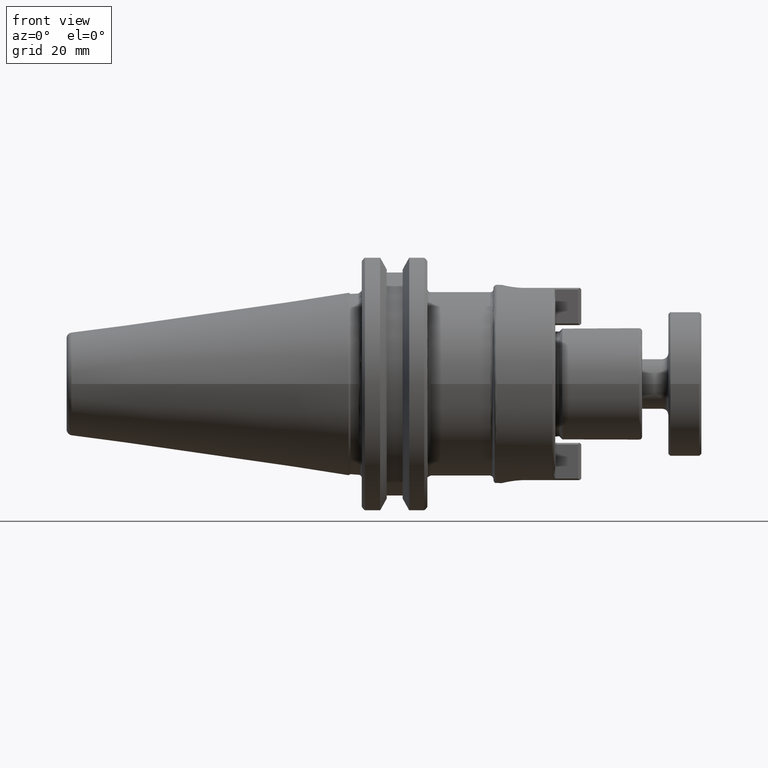
[diagram: clean part render]
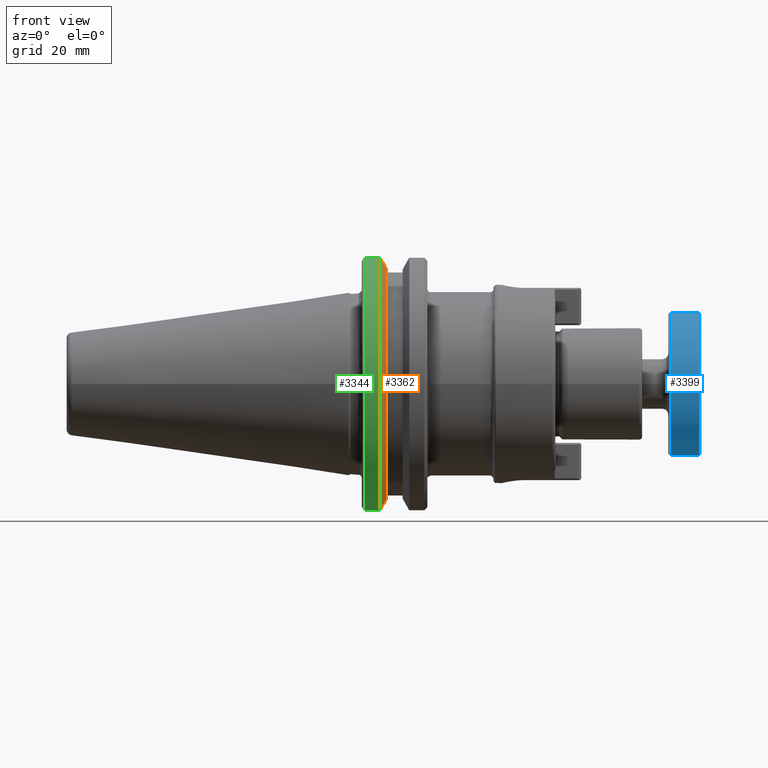
[diagram: same view with three faces highlighted in distinct colors, each labeled with its STEP entity id]
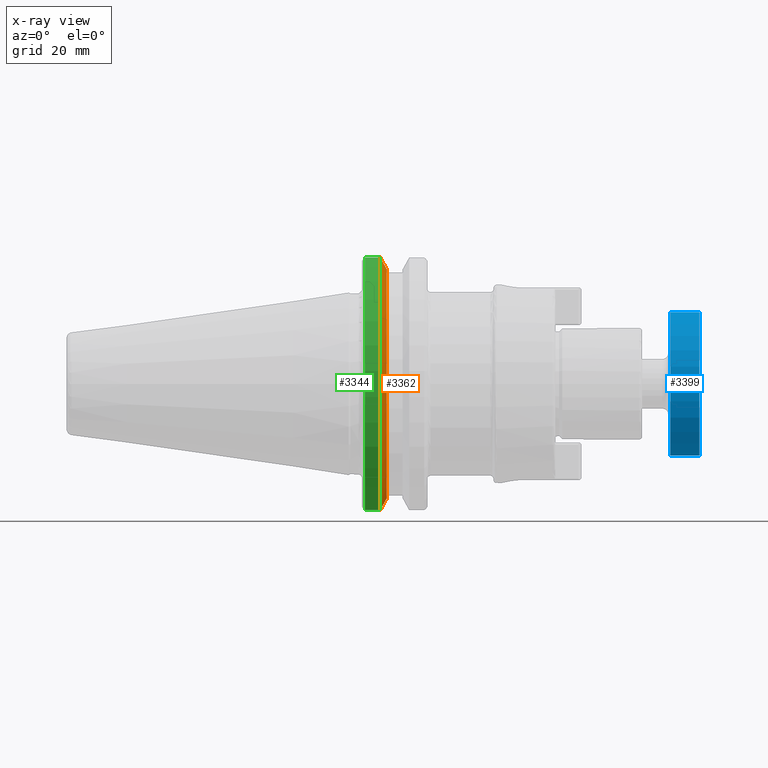
[diagram: x-ray of the same camera — body ghosted, the three highlighted faces saturated]
A machine part, front view with three faces highlighted in distinct colors.
The next image is the same camera in x-ray (body ghosted, the three faces saturated) — at least one of them is partly hidden behind the body in this view.
Their STEP definitions:

[orange] entity #3362 — the highlighted conical surface has half-angle 60 deg.
#90=(
BOUNDED_CURVE()
B_SPLINE_CURVE(2,(#6250,#6251,#6252),.UNSPECIFIED.,.F.,.F.)
B_SPLINE_CURVE_WITH_KNOTS((3,3),(0.,0.0246703220906679),.UNSPECIFIED.)
CURVE()
GEOMETRIC_REPRESENTATION_ITEM()
RATIONAL_B_SPLINE_CURVE((1.,1.00009739248585,1.00018150703369))
REPRESENTATION_ITEM('')
);
#106=(
BOUNDED_CURVE()
B_SPLINE_CURVE(2,(#6776,#6777,#6778),.UNSPECIFIED.,.F.,.F.)
B_SPLINE_CURVE_WITH_KNOTS((3,3),(0.337238883118682,0.361909205209384),
 .UNSPECIFIED.)
CURVE()
GEOMETRIC_REPRESENTATION_ITEM()
RATIONAL_B_SPLINE_CURVE((1.00018150703332,1.00009739248565,1.))
REPRESENTATION_ITEM('')
);
#139=B_SPLINE_CURVE_WITH_KNOTS('',3,(#5591,#5592,#5593,#5594,#5595,#5596,
#5597,#5598,#5599,#5600,#5601,#5602,#5603,#5604,#5605,#5606,#5607,#5608,
#5609,#5610,#5611),.UNSPECIFIED.,.F.,.F.,(4,1,2,2,2,2,1,2,2,2,1,4),(-0.26679066811611,
-0.258089161815722,-0.237293672557379,-0.216372800269002,-0.195325359855791,
-0.174150151867896,-0.109845707832108,-0.0663145837091143,-0.0443467487461063,
-0.0222423284602776,0.,0.0409037005549474),.UNSPECIFIED.);
#156=B_SPLINE_CURVE_WITH_KNOTS('',3,(#6220,#6221,#6222,#6223,#6224,#6225,
#6226,#6227,#6228,#6229,#6230,#6231,#6232,#6233,#6234,#6235,#6236,#6237,
#6238,#6239,#6240),.UNSPECIFIED.,.F.,.F.,(4,1,2,2,2,1,2,2,2,2,1,4),(-0.298992862370666,
-0.258089161815683,-0.235846833356184,-0.213742413070956,-0.191774578108383,
-0.148243453985797,-0.083939009949657,-0.0627638019614301,-0.0417163615477947,
-0.0207954892589158,0.,0.00870150624889897),.UNSPECIFIED.);
#572=FACE_OUTER_BOUND('',#773,.T.);
#773=EDGE_LOOP('',(#2940,#2941,#2942,#2943,#2944,#2945));
#1374=CIRCLE('',#3682,1.14031983597202);
#1399=CIRCLE('',#3769,1.25);
#1562=VERTEX_POINT('',#5577);
#1563=VERTEX_POINT('',#5584);
#1566=VERTEX_POINT('',#5617);
#1597=VERTEX_POINT('',#6213);
#1600=VERTEX_POINT('',#6248);
#1669=VERTEX_POINT('',#6775);
#1929=EDGE_CURVE('',#1563,#1562,#139,.T.);
#1933=EDGE_CURVE('',#1563,#1566,#1374,.T.);
#1973=EDGE_CURVE('',#1597,#1566,#156,.T.);
#1977=EDGE_CURVE('',#1600,#1597,#90,.T.);
#2091=EDGE_CURVE('',#1562,#1669,#106,.T.);
#2095=EDGE_CURVE('',#1669,#1600,#1399,.T.);
#2940=ORIENTED_EDGE('',*,*,#1929,.F.);
#2941=ORIENTED_EDGE('',*,*,#1933,.T.);
#2942=ORIENTED_EDGE('',*,*,#1973,.F.);
#2943=ORIENTED_EDGE('',*,*,#1977,.F.);
#2944=ORIENTED_EDGE('',*,*,#2095,.F.);
#2945=ORIENTED_EDGE('',*,*,#2091,.F.);
#3228=CONICAL_SURFACE('',#3800,1.28590991798628,1.04719755119643);
#3362=ADVANCED_FACE('',(#572),#3228,.T.);
#3682=AXIS2_PLACEMENT_3D('',#5624,#4240,#4241);
#3769=AXIS2_PLACEMENT_3D('',#6787,#4489,#4490);
#3800=AXIS2_PLACEMENT_3D('',#6837,#4558,#4559);
#4240=DIRECTION('center_axis',(-1.,1.62451355720802E-13,0.));
#4241=DIRECTION('ref_axis',(1.62482077846342E-13,1.,0.));
#4489=DIRECTION('center_axis',(-1.,-1.16523256636576E-36,0.));
#4490=DIRECTION('ref_axis',(1.62451355720802E-13,1.,0.));
#4558=DIRECTION('center_axis',(-1.,1.62451355720802E-13,0.));
#4559=DIRECTION('ref_axis',(-1.62420633595261E-13,-1.,-1.89882151931499E-15));
#5577=CARTESIAN_POINT('',(0.304097963663861,-0.333205733276637,-1.1965533896345));
#5584=CARTESIAN_POINT('',(0.362850000018263,-0.333149715439596,-1.09056893196945));
#5591=CARTESIAN_POINT('Ctrl Pts',(0.362850000074912,-0.333149715431673,
-1.09056893200217));
#5592=CARTESIAN_POINT('Ctrl Pts',(0.36229776315521,-0.333150136745706,-1.09156894051598));
#5593=CARTESIAN_POINT('Ctrl Pts',(0.360425583735129,-0.333151576021461,
-1.09495874351327));
#5594=CARTESIAN_POINT('Ctrl Pts',(0.358552843536145,-0.33315305257184,-1.09834821630023));
#5595=CARTESIAN_POINT('Ctrl Pts',(0.355903756464087,-0.333155177367194,
-1.10314148193));
#5596=CARTESIAN_POINT('Ctrl Pts',(0.354574954851492,-0.333156261404296,
-1.10554515500555));
#5597=CARTESIAN_POINT('Ctrl Pts',(0.351908767053504,-0.333158472434805,
-1.1103667217287));
#5598=CARTESIAN_POINT('Ctrl Pts',(0.350571377575347,-0.333159599647954,
-1.11278461344026));
#5599=CARTESIAN_POINT('Ctrl Pts',(0.347887938055783,-0.33316189714907,-1.11763475531964));
#5600=CARTESIAN_POINT('Ctrl Pts',(0.34654188473831,-0.333163067656323,-1.12006700355403));
#5601=CARTESIAN_POINT('Ctrl Pts',(0.341107080158826,-0.333167865320911,
-1.12988481558127));
#5602=CARTESIAN_POINT('Ctrl Pts',(0.334246734441454,-0.33317419571174,-1.14226788346333));
#5603=CARTESIAN_POINT('Ctrl Pts',(0.327379805823841,-0.333180969510772,
-1.15464707005148));
#5604=CARTESIAN_POINT('Ctrl Pts',(0.323207301074987,-0.333185189046114,
-1.16216522853373));
#5605=CARTESIAN_POINT('Ctrl Pts',(0.321807612567309,-0.333186622042596,
-1.16468660436735));
#5606=CARTESIAN_POINT('Ctrl Pts',(0.318999014463773,-0.333189532056907,
-1.16974472683489));
#5607=CARTESIAN_POINT('Ctrl Pts',(0.31759010164354,-0.333191009292996,-1.17228147157004));
#5608=CARTESIAN_POINT('Ctrl Pts',(0.314762970597268,-0.33319400793761,-1.17737048354769));
#5609=CARTESIAN_POINT('Ctrl Pts',(0.310736636168226,-0.333198327842171,
-1.18461637151514));
#5610=CARTESIAN_POINT('Ctrl Pts',(0.306708244172714,-0.333202787555305,
-1.19186104554502));
#5611=CARTESIAN_POINT('Ctrl Pts',(0.304097963663861,-0.333205733276637,
-1.1965533896345));
#5617=CARTESIAN_POINT('',(0.362850000003168,-0.333149715435783,1.09056893198429));
#5624=CARTESIAN_POINT('Origin',(0.362849999999605,-2.77198870834126E-13,
0.));
#6213=CARTESIAN_POINT('',(0.304097963663861,-0.333205733276636,1.1965533896345));
#6220=CARTESIAN_POINT('Ctrl Pts',(0.304097963663861,-0.333205733276635,
1.1965533896345));
#6221=CARTESIAN_POINT('Ctrl Pts',(0.306708244172717,-0.333202787555303,
1.19186104554502));
#6222=CARTESIAN_POINT('Ctrl Pts',(0.310736636168182,-0.333198327842172,
1.18461637151522));
#6223=CARTESIAN_POINT('Ctrl Pts',(0.314762970597177,-0.333194007937611,
1.17737048354786));
#6224=CARTESIAN_POINT('Ctrl Pts',(0.317590101643361,-0.333191009292997,
1.17228147157037));
#6225=CARTESIAN_POINT('Ctrl Pts',(0.318999014463555,-0.333189532056908,
1.16974472683528));
#6226=CARTESIAN_POINT('Ctrl Pts',(0.321807612567026,-0.333186622042597,
1.16468660436786));
#6227=CARTESIAN_POINT('Ctrl Pts',(0.323207301074676,-0.333185189046115,
1.16216522853429));
#6228=CARTESIAN_POINT('Ctrl Pts',(0.327379805823476,-0.333180969510772,
1.15464707005214));
#6229=CARTESIAN_POINT('Ctrl Pts',(0.334246734441086,-0.33317419571174,1.14226788346399));
#6230=CARTESIAN_POINT('Ctrl Pts',(0.341107080158454,-0.333167865320907,
1.12988481558195));
#6231=CARTESIAN_POINT('Ctrl Pts',(0.346541884737982,-0.333163067656319,
1.12006700355462));
#6232=CARTESIAN_POINT('Ctrl Pts',(0.347887938055476,-0.333161897149066,
1.1176347553202));
#6233=CARTESIAN_POINT('Ctrl Pts',(0.350571377575088,-0.33315959964795,1.11278461344073));
#6234=CARTESIAN_POINT('Ctrl Pts',(0.351908767053272,-0.333158472434802,
1.11036672172912));
#6235=CARTESIAN_POINT('Ctrl Pts',(0.354574954851319,-0.333156261404293,
1.10554515500587));
#6236=CARTESIAN_POINT('Ctrl Pts',(0.355903756463946,-0.333155177367191,
1.10314148193026));
#6237=CARTESIAN_POINT('Ctrl Pts',(0.358552843536072,-0.333153052571837,
1.09834821630037));
#6238=CARTESIAN_POINT('Ctrl Pts',(0.360425583731823,-0.333151576021461,
1.09495874351926));
#6239=CARTESIAN_POINT('Ctrl Pts',(0.362297763148674,-0.333150136745708,
1.09156894052782));
#6240=CARTESIAN_POINT('Ctrl Pts',(0.362850000065109,-0.333149715431676,
1.09056893201993));
#6248=CARTESIAN_POINT('',(0.299526127773263,-0.339628138321233,1.20297661143534));
#6250=CARTESIAN_POINT('Ctrl Pts',(0.299526127773057,-0.339628138321503,
1.20297661143561));
#6251=CARTESIAN_POINT('Ctrl Pts',(0.301821602854596,-0.336406732121148,
1.1997547955595));
#6252=CARTESIAN_POINT('Ctrl Pts',(0.304097963663861,-0.333205733276636,
1.1965533896345));
#6775=CARTESIAN_POINT('',(0.299526127773263,-0.339628138321216,-1.20297661143534));
#6776=CARTESIAN_POINT('Ctrl Pts',(0.304097963663861,-0.333205733276637,
-1.1965533896345));
#6777=CARTESIAN_POINT('Ctrl Pts',(0.301821602854592,-0.336406732121154,
-1.19975479555951));
#6778=CARTESIAN_POINT('Ctrl Pts',(0.299526127773054,-0.339628138321509,
-1.20297661143562));
#6787=CARTESIAN_POINT('Origin',(0.299526127773263,-1.25900334302591E-36,
0.));
#6837=CARTESIAN_POINT('Origin',(0.2787935269573,-2.63543782831294E-13,0.));

[blue] entity #3399 — the highlighted cylindrical surface (bore or boss wall) has radius 17.5 mm, axis along (1, 0, 0).
#324=CYLINDRICAL_SURFACE('',#3857,0.688976377952756);
#609=FACE_OUTER_BOUND('',#815,.T.);
#815=EDGE_LOOP('',(#3097,#3098,#3099,#3100,#3101,#3102));
#1041=LINE('',#6996,#1267);
#1267=VECTOR('',#4729,0.688976377952756);
#1428=CIRCLE('',#3855,0.688976377952756);
#1429=CIRCLE('',#3856,0.688976377952756);
#1430=CIRCLE('',#3858,0.688976377952756);
#1431=CIRCLE('',#3859,0.688976377952756);
#1723=VERTEX_POINT('',#6989);
#1724=VERTEX_POINT('',#6991);
#1725=VERTEX_POINT('',#6995);
#1726=VERTEX_POINT('',#6997);
#2187=EDGE_CURVE('',#1723,#1724,#1428,.T.);
#2188=EDGE_CURVE('',#1724,#1723,#1429,.T.);
#2189=EDGE_CURVE('',#1724,#1725,#1041,.T.);
#2190=EDGE_CURVE('',#1726,#1725,#1430,.T.);
#2191=EDGE_CURVE('',#1725,#1726,#1431,.T.);
#3097=ORIENTED_EDGE('',*,*,#2187,.F.);
#3098=ORIENTED_EDGE('',*,*,#2188,.F.);
#3099=ORIENTED_EDGE('',*,*,#2189,.T.);
#3100=ORIENTED_EDGE('',*,*,#2190,.F.);
#3101=ORIENTED_EDGE('',*,*,#2191,.F.);
#3102=ORIENTED_EDGE('',*,*,#2189,.F.);
#3399=ADVANCED_FACE('',(#609),#324,.T.);
#3855=AXIS2_PLACEMENT_3D('',#6992,#4723,#4724);
#3856=AXIS2_PLACEMENT_3D('',#6993,#4725,#4726);
#3857=AXIS2_PLACEMENT_3D('',#6994,#4727,#4728);
#3858=AXIS2_PLACEMENT_3D('',#6998,#4730,#4731);
#3859=AXIS2_PLACEMENT_3D('',#6999,#4732,#4733);
#4723=DIRECTION('center_axis',(1.,2.96059473233375E-16,0.));
#4724=DIRECTION('ref_axis',(0.,-1.,0.));
#4725=DIRECTION('center_axis',(1.,2.96059473233375E-16,0.));
#4726=DIRECTION('ref_axis',(0.,-1.,0.));
#4727=DIRECTION('center_axis',(1.,2.96059473233375E-16,0.));
#4728=DIRECTION('ref_axis',(0.,1.,0.));
#4729=DIRECTION('',(-1.,-2.96059473233375E-16,0.));
#4730=DIRECTION('center_axis',(-1.,-2.96059473233375E-16,0.));
#4731=DIRECTION('ref_axis',(0.,-1.,0.));
#4732=DIRECTION('center_axis',(-1.,-2.96059473233375E-16,0.));
#4733=DIRECTION('ref_axis',(0.,-1.,0.));
#6989=CARTESIAN_POINT('',(-0.0196850393700787,0.688976377952756,8.43724850074472E-17));
#6991=CARTESIAN_POINT('',(-0.0196850393700785,-0.688976377952756,-8.43752715947979E-17));
#6992=CARTESIAN_POINT('Origin',(-0.0196850393700787,-5.82794238648376E-18,
0.));
#6993=CARTESIAN_POINT('Origin',(-0.0196850393700787,-5.82794238648376E-18,
0.));
#6994=CARTESIAN_POINT('Origin',(-0.15748031496063,-4.662353909187E-17,0.));
#6995=CARTESIAN_POINT('',(-0.295275590551181,-0.688976377952756,-8.43752715947979E-17));
#6996=CARTESIAN_POINT('',(-0.15748031496063,-0.688976377952756,-8.43752715947979E-17));
#6997=CARTESIAN_POINT('',(-0.295275590551181,0.688976377952756,-8.43724850074472E-17));
#6998=CARTESIAN_POINT('Origin',(-0.295275590551181,-8.74191357972564E-17,
0.));
#6999=CARTESIAN_POINT('Origin',(-0.295275590551181,-8.74191357972564E-17,
0.));

[green] entity #3344 — the highlighted cylindrical surface (partial cylindrical patch) has radius 31.75 mm, axis along (1, 0, 0).
#311=CYLINDRICAL_SURFACE('',#3768,1.25);
#554=FACE_OUTER_BOUND('',#754,.T.);
#754=EDGE_LOOP('',(#2851,#2852,#2853,#2854));
#923=LINE('',#6249,#1149);
#978=LINE('',#6780,#1204);
#1149=VECTOR('',#4281,0.393700787401575);
#1204=VECTOR('',#4482,0.393700787401575);
#1398=CIRCLE('',#3767,1.25);
#1399=CIRCLE('',#3769,1.25);
#1599=VERTEX_POINT('',#6244);
#1600=VERTEX_POINT('',#6248);
#1669=VERTEX_POINT('',#6775);
#1670=VERTEX_POINT('',#6779);
#1976=EDGE_CURVE('',#1599,#1600,#923,.T.);
#2092=EDGE_CURVE('',#1669,#1670,#978,.T.);
#2094=EDGE_CURVE('',#1670,#1599,#1398,.T.);
#2095=EDGE_CURVE('',#1669,#1600,#1399,.T.);
#2851=ORIENTED_EDGE('',*,*,#2092,.F.);
#2852=ORIENTED_EDGE('',*,*,#2095,.T.);
#2853=ORIENTED_EDGE('',*,*,#1976,.F.);
#2854=ORIENTED_EDGE('',*,*,#2094,.F.);
#3344=ADVANCED_FACE('',(#554),#311,.T.);
#3767=AXIS2_PLACEMENT_3D('',#6785,#4485,#4486);
#3768=AXIS2_PLACEMENT_3D('',#6786,#4487,#4488);
#3769=AXIS2_PLACEMENT_3D('',#6787,#4489,#4490);
#4281=DIRECTION('',(1.,1.16523256636576E-36,0.));
#4482=DIRECTION('',(-1.,-1.16523256636576E-36,0.));
#4485=DIRECTION('center_axis',(-1.,-1.16523256636576E-36,0.));
#4486=DIRECTION('ref_axis',(-1.62451355720802E-13,-1.,0.));
#4487=DIRECTION('center_axis',(1.,1.16523256636576E-36,0.));
#4488=DIRECTION('ref_axis',(1.62451355720802E-13,-1.,-7.22789203751574E-15));
#4489=DIRECTION('center_axis',(-1.,-1.16523256636576E-36,0.));
#4490=DIRECTION('ref_axis',(1.62451355720802E-13,1.,0.));
#6244=CARTESIAN_POINT('',(0.155,-0.339628138321233,1.20297661143534));
#6248=CARTESIAN_POINT('',(0.299526127773263,-0.339628138321233,1.20297661143534));
#6249=CARTESIAN_POINT('',(0.4375,-0.339628138321233,1.20297661143534));
#6775=CARTESIAN_POINT('',(0.299526127773263,-0.339628138321216,-1.20297661143534));
#6779=CARTESIAN_POINT('',(0.155,-0.339628138321216,-1.20297661143534));
#6780=CARTESIAN_POINT('',(0.4375,-0.339628138321216,-1.20297661143534));
#6785=CARTESIAN_POINT('Origin',(0.155,-1.42740989379805E-36,0.));
#6786=CARTESIAN_POINT('Origin',(0.4375,-1.09823169379973E-36,0.));
#6787=CARTESIAN_POINT('Origin',(0.299526127773263,-1.25900334302591E-36,
0.));